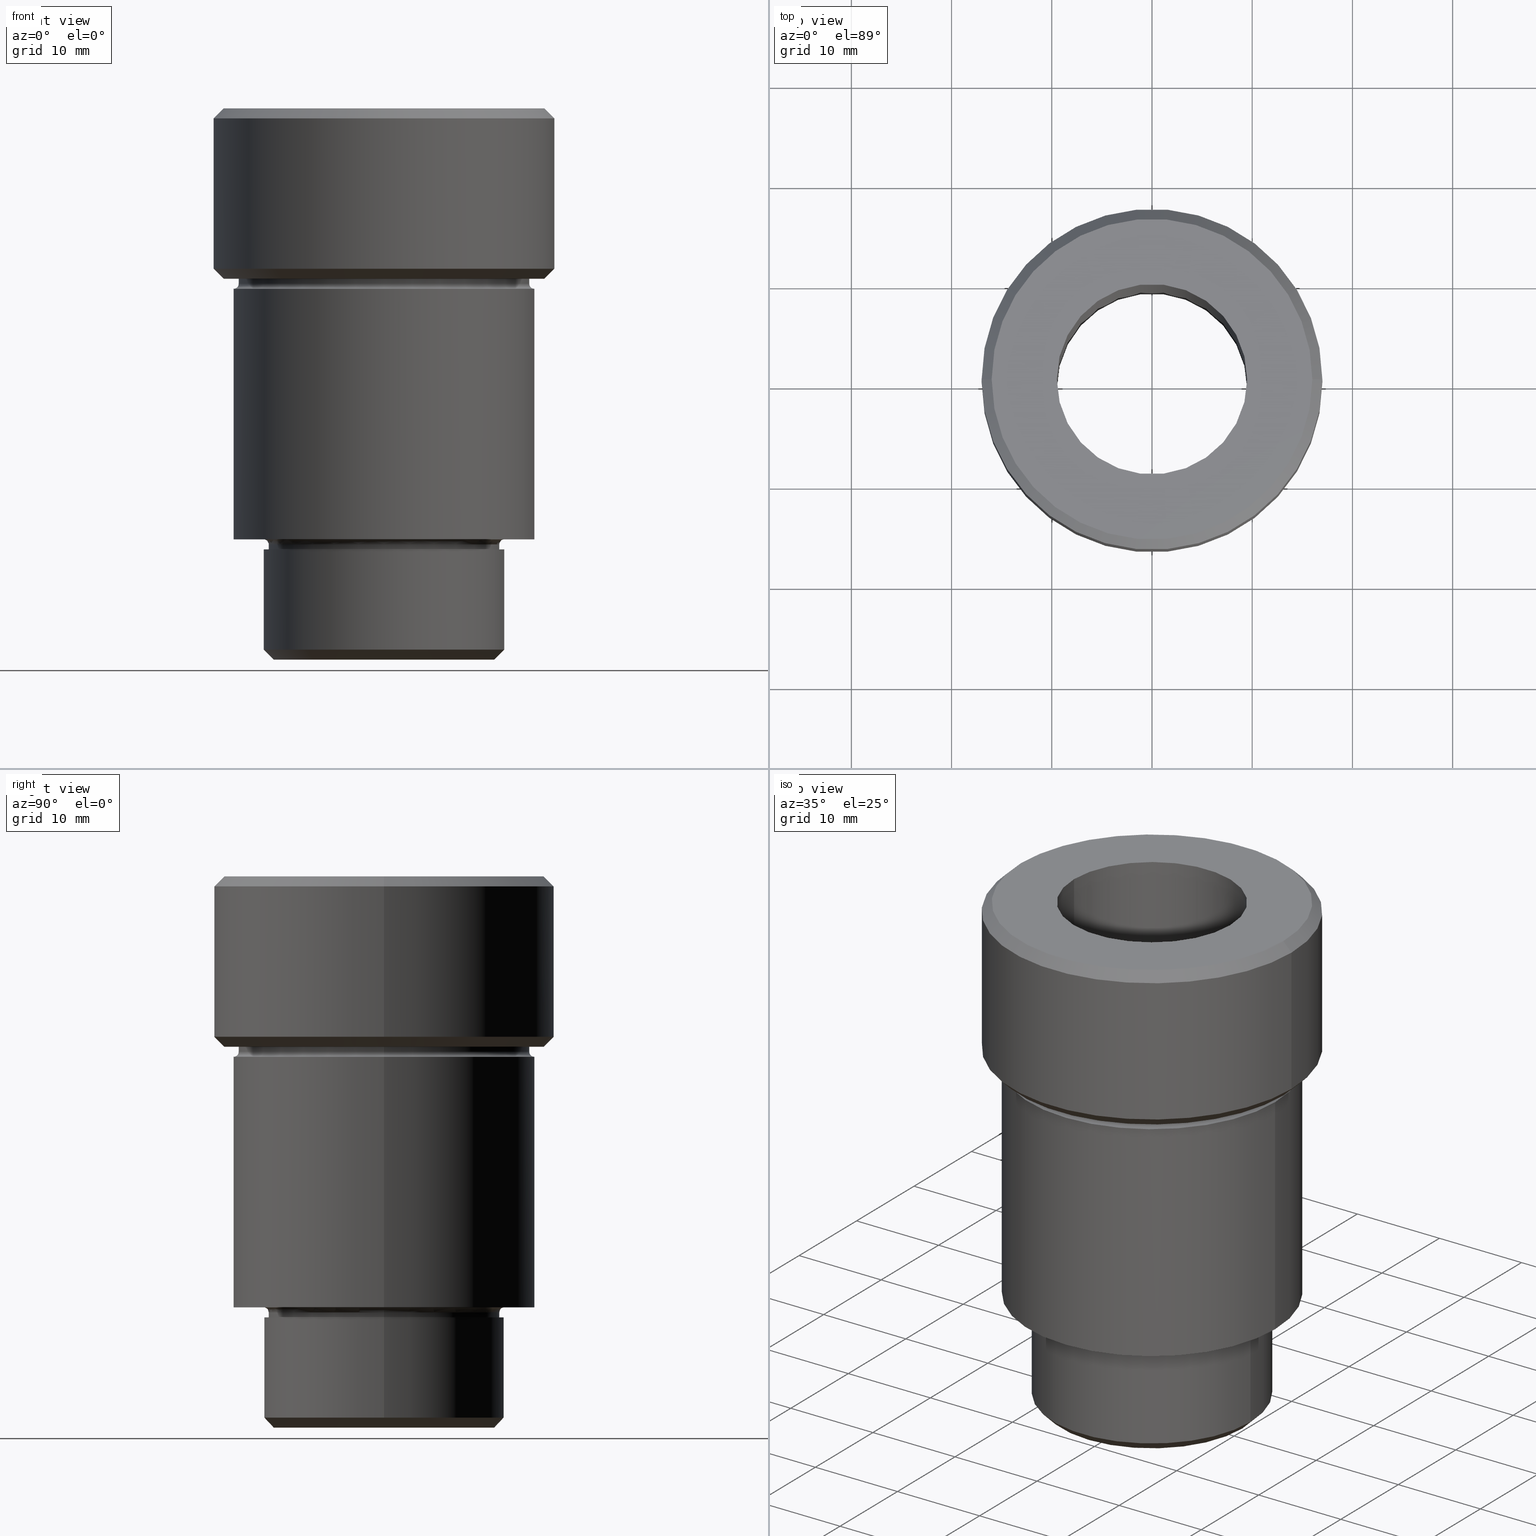
[diagram: canonical four-view strip — front | top / right | iso, engineering-drawing reading convention]
A machine part, canonical four-view strip (front | top / right | iso — engineering-drawing reading convention). The complete STEP part file that produces these views, byte-faithful:
ISO-10303-21;
HEADER;
FILE_DESCRIPTION (( 'STEP AP203' ),
    '1' );
FILE_NAME ('e578.STEP',
    '2024-01-08T12:25:51',
    ( '' ),
    ( '' ),
    'SwSTEP 2.0',
    'SolidWorks 2019',
    '' );
FILE_SCHEMA (( 'CONFIG_CONTROL_DESIGN' ));
ENDSEC;

DATA;
#1 = CARTESIAN_POINT ( 'NONE',  ( -9.500000000000000000, 1.163414459189985485E-15, 0.000000000000000000 ) ) ;
#2 = ORIENTED_EDGE ( 'NONE', *, *, #283, .F. ) ;
#3 = FACE_OUTER_BOUND ( 'NONE', #150, .T. ) ;
#4 = ORIENTED_EDGE ( 'NONE', *, *, #693, .T. ) ;
#5 = ORIENTED_EDGE ( 'NONE', *, *, #262, .T. ) ;
#6 = AXIS2_PLACEMENT_3D ( 'NONE', #34, #514, #87 ) ;
#7 = AXIS2_PLACEMENT_3D ( 'NONE', #315, #76, #418 ) ;
#8 = CARTESIAN_POINT ( 'NONE',  ( -17.00000000000000000, 2.081899558550500280E-15, -16.00000000000001066 ) ) ;
#9 = LINE ( 'NONE', #617, #44 ) ;
#10 = DIRECTION ( 'NONE',  ( -0.000000000000000000, -0.000000000000000000, 1.000000000000000000 ) ) ;
#11 = LINE ( 'NONE', #251, #726 ) ;
#12 = ORIENTED_EDGE ( 'NONE', *, *, #301, .F. ) ;
#13 = CARTESIAN_POINT ( 'NONE',  ( 0.000000000000000000, 0.000000000000000000, -54.99999999999999289 ) ) ;
#14 = CARTESIAN_POINT ( 'NONE',  ( -15.00000000000000178, 1.836970198721029983E-15, 0.000000000000000000 ) ) ;
#15 = VECTOR ( 'NONE', #42, 999.9999999999998863 ) ;
#16 = CARTESIAN_POINT ( 'NONE',  ( 0.000000000000000000, 0.000000000000000000, -54.99999999999999289 ) ) ;
#17 = ORGANIZATION ( 'NEUR�EN�', 'NEUR�EN�', '' ) ;
#18 = EDGE_CURVE ( 'NONE', #225, #73, #270, .T. ) ;
#19 = DIRECTION ( 'NONE',  ( -1.000000000000000000, 0.000000000000000000, 0.000000000000000000 ) ) ;
#20 = APPROVAL_DATE_TIME ( #565, #277 ) ;
#21 = PERSON_AND_ORGANIZATION ( #573, #17 ) ;
#22 = DIRECTION ( 'NONE',  ( -1.000000000000000000, 0.000000000000000000, 0.000000000000000000 ) ) ;
#23 = ORIENTED_EDGE ( 'NONE', *, *, #136, .T. ) ;
#24 =( LENGTH_UNIT ( ) NAMED_UNIT ( * ) SI_UNIT ( .MILLI., .METRE. ) );
#25 = CARTESIAN_POINT ( 'NONE',  ( 12.00000000000000000, 1.469576158976823947E-15, -43.00000000000000000 ) ) ;
#26 = CARTESIAN_POINT ( 'NONE',  ( 12.00000000000000355, 0.000000000000000000, -54.00000000000001421 ) ) ;
#27 = CARTESIAN_POINT ( 'NONE',  ( -12.00000000000000355, 1.469576158976824342E-15, -54.00000000000001421 ) ) ;
#28 = ADVANCED_FACE ( 'NONE', ( #691 ), #524, .F. ) ;
#29 = ORIENTED_EDGE ( 'NONE', *, *, #18, .F. ) ;
#30 = AXIS2_PLACEMENT_3D ( 'NONE', #448, #391, #219 ) ;
#31 = COORDINATED_UNIVERSAL_TIME_OFFSET ( 1, 0, .AHEAD. ) ;
#32 = CARTESIAN_POINT ( 'NONE',  ( 0.000000000000000000, 0.000000000000000000, -43.00000000000000000 ) ) ;
#33 = CIRCLE ( 'NONE', #460, 0.5000000000000004441 ) ;
#34 = CARTESIAN_POINT ( 'NONE',  ( 0.000000000000000000, 0.000000000000000000, -16.00000000000001066 ) ) ;
#35 = CARTESIAN_POINT ( 'NONE',  ( 0.000000000000000000, 0.000000000000000000, -43.50000000000000000 ) ) ;
#36 = EDGE_CURVE ( 'NONE', #575, #111, #443, .T. ) ;
#37 = CARTESIAN_POINT ( 'NONE',  ( 0.000000000000000000, 0.000000000000000000, -43.00000000000000000 ) ) ;
#38 = EDGE_CURVE ( 'NONE', #478, #627, #725, .T. ) ;
#39 = DIRECTION ( 'NONE',  ( 0.000000000000000000, -0.000000000000000000, 1.000000000000000000 ) ) ;
#40 = EDGE_LOOP ( 'NONE', ( #647, #237, #119, #578 ) ) ;
#41 = ORIENTED_EDGE ( 'NONE', *, *, #700, .T. ) ;
#42 = DIRECTION ( 'NONE',  ( 0.7071067811865512365, 0.000000000000000000, 0.7071067811865439090 ) ) ;
#43 = CIRCLE ( 'NONE', #613, 12.00000000000000355 ) ;
#44 = VECTOR ( 'NONE', #551, 1000.000000000000000 ) ;
#45 = CARTESIAN_POINT ( 'NONE',  ( 0.000000000000000000, 0.000000000000000000, -54.00000000000001421 ) ) ;
#46 = CYLINDRICAL_SURFACE ( 'NONE', #767, 12.00000000000000355 ) ;
#47 = DIRECTION ( 'NONE',  ( 0.7071067811865524577, 0.000000000000000000, 0.7071067811865426878 ) ) ;
#48 = EDGE_CURVE ( 'NONE', #637, #86, #670, .T. ) ;
#49 = CC_DESIGN_PERSON_AND_ORGANIZATION_ASSIGNMENT ( #511, #89, ( #102 ) ) ;
#50 = ORIENTED_EDGE ( 'NONE', *, *, #188, .T. ) ;
#51 = EDGE_LOOP ( 'NONE', ( #2, #596, #492, #331 ) ) ;
#52 = FACE_OUTER_BOUND ( 'NONE', #63, .T. ) ;
#53 = EDGE_CURVE ( 'NONE', #358, #111, #242, .T. ) ;
#54 = CARTESIAN_POINT ( 'NONE',  ( 0.000000000000000000, 0.000000000000000000, -17.00000000000000000 ) ) ;
#55 = ORIENTED_EDGE ( 'NONE', *, *, #755, .T. ) ;
#56 = CONICAL_SURFACE ( 'NONE', #228, 12.00000000000000355, 0.7853981633974552734 ) ;
#57 = AXIS2_PLACEMENT_3D ( 'NONE', #13, #130, #304 ) ;
#58 = DIRECTION ( 'NONE',  ( -0.000000000000000000, -0.000000000000000000, 1.000000000000000000 ) ) ;
#59 = CIRCLE ( 'NONE', #83, 0.5000000000000004441 ) ;
#60 = AXIS2_PLACEMENT_3D ( 'NONE', #16, #321, #199 ) ;
#61 = DIRECTION ( 'NONE',  ( -0.000000000000000000, -0.000000000000000000, 1.000000000000000000 ) ) ;
#62 = CYLINDRICAL_SURFACE ( 'NONE', #166, 12.00000000000000355 ) ;
#63 = EDGE_LOOP ( 'NONE', ( #642, #429 ) ) ;
#64 = DIRECTION ( 'NONE',  ( -0.000000000000000000, -0.000000000000000000, 1.000000000000000000 ) ) ;
#65 = FACE_OUTER_BOUND ( 'NONE', #309, .T. ) ;
#66 = DIRECTION ( 'NONE',  ( 0.000000000000000000, 0.000000000000000000, 1.000000000000000000 ) ) ;
#67 = EDGE_LOOP ( 'NONE', ( #176, #96, #41, #683 ) ) ;
#68 = DIRECTION ( 'NONE',  ( -0.000000000000000000, -0.000000000000000000, 1.000000000000000000 ) ) ;
#69 = ORIENTED_EDGE ( 'NONE', *, *, #584, .T. ) ;
#70 = DIRECTION ( 'NONE',  ( -1.000000000000000000, 0.000000000000000000, 0.000000000000000000 ) ) ;
#71 = CIRCLE ( 'NONE', #576, 17.00000000000000000 ) ;
#72 = AXIS2_PLACEMENT_3D ( 'NONE', #753, #314, #206 ) ;
#73 = VERTEX_POINT ( 'NONE', #278 ) ;
#74 = DIRECTION ( 'NONE',  ( 1.000000000000000000, 0.000000000000000000, 0.000000000000000000 ) ) ;
#75 = EDGE_CURVE ( 'NONE', #302, #632, #284, .T. ) ;
#76 = DIRECTION ( 'NONE',  ( -0.000000000000000000, -0.000000000000000000, 1.000000000000000000 ) ) ;
#77 = CALENDAR_DATE ( 2024, 8, 1 ) ;
#78 = EDGE_CURVE ( 'NONE', #496, #732, #600, .T. ) ;
#79 = DIRECTION ( 'NONE',  ( 1.000000000000000000, 0.000000000000000000, 0.000000000000000000 ) ) ;
#80 = ORIENTED_EDGE ( 'NONE', *, *, #349, .F. ) ;
#81 = ORIENTED_EDGE ( 'NONE', *, *, #216, .F. ) ;
#82 = VECTOR ( 'NONE', #658, 1000.000000000000000 ) ;
#83 = AXIS2_PLACEMENT_3D ( 'NONE', #236, #602, #620 ) ;
#84 = ORIENTED_EDGE ( 'NONE', *, *, #173, .F. ) ;
#85 = EDGE_CURVE ( 'NONE', #348, #478, #738, .T. ) ;
#86 = VERTEX_POINT ( 'NONE', #616 ) ;
#87 = DIRECTION ( 'NONE',  ( -1.000000000000000000, 0.000000000000000000, 0.000000000000000000 ) ) ;
#88 = PLANE ( 'NONE',  #400 ) ;
#89 = PERSON_AND_ORGANIZATION_ROLE ( 'creator' ) ;
#90 = ORIENTED_EDGE ( 'NONE', *, *, #124, .F. ) ;
#91 = DATE_AND_TIME ( #403, #615 ) ;
#92 = CARTESIAN_POINT ( 'NONE',  ( 0.000000000000000000, 0.000000000000000000, 0.000000000000000000 ) ) ;
#93 = EDGE_LOOP ( 'NONE', ( #780, #407, #90, #241 ) ) ;
#94 = EDGE_CURVE ( 'NONE', #362, #419, #656, .T. ) ;
#95 = APPROVAL_STATUS ( 'not_yet_approved' ) ;
#96 = ORIENTED_EDGE ( 'NONE', *, *, #48, .F. ) ;
#97 = AXIS2_PLACEMENT_3D ( 'NONE', #541, #791, #235 ) ;
#98 = DIRECTION ( 'NONE',  ( -0.000000000000000000, -0.000000000000000000, 1.000000000000000000 ) ) ;
#99 = AXIS2_PLACEMENT_3D ( 'NONE', #203, #397, #147 ) ;
#100 = ORIENTED_EDGE ( 'NONE', *, *, #297, .T. ) ;
#101 = CARTESIAN_POINT ( 'NONE',  ( 0.000000000000000000, 0.000000000000000000, -17.00000000000000000 ) ) ;
#102 = PRODUCT_DEFINITION ( 'NEZN�M�', '', #168, #750 ) ;
#103 = EDGE_LOOP ( 'NONE', ( #518, #456, #233, #540 ) ) ;
#104 = DIRECTION ( 'NONE',  ( -1.000000000000000000, 0.000000000000000000, 0.000000000000000000 ) ) ;
#105 = EDGE_CURVE ( 'NONE', #178, #253, #11, .T. ) ;
#106 = DIRECTION ( 'NONE',  ( 1.000000000000000000, 0.000000000000000000, 0.000000000000000000 ) ) ;
#107 = AXIS2_PLACEMENT_3D ( 'NONE', #537, #787, #230 ) ;
#108 = AXIS2_PLACEMENT_3D ( 'NONE', #194, #138, #471 ) ;
#109 = EDGE_CURVE ( 'NONE', #393, #575, #317, .T. ) ;
#110 = DIRECTION ( 'NONE',  ( -0.000000000000000000, -0.000000000000000000, 1.000000000000000000 ) ) ;
#111 = VERTEX_POINT ( 'NONE', #8 ) ;
#112 = EDGE_CURVE ( 'NONE', #627, #116, #271, .T. ) ;
#113 = DIRECTION ( 'NONE',  ( -0.000000000000000000, -0.000000000000000000, 1.000000000000000000 ) ) ;
#114 = ORIENTED_EDGE ( 'NONE', *, *, #415, .T. ) ;
#115 = DIRECTION ( 'NONE',  ( 1.000000000000000000, 0.000000000000000000, 0.000000000000000000 ) ) ;
#116 = VERTEX_POINT ( 'NONE', #25 ) ;
#117 = CARTESIAN_POINT ( 'NONE',  ( 0.000000000000000000, 0.000000000000000000, -43.00000000000000000 ) ) ;
#118 = FACE_OUTER_BOUND ( 'NONE', #261, .T. ) ;
#119 = ORIENTED_EDGE ( 'NONE', *, *, #467, .F. ) ;
#120 = VECTOR ( 'NONE', #563, 1000.000000000000000 ) ;
#121 = AXIS2_PLACEMENT_3D ( 'NONE', #422, #123, #273 ) ;
#122 = CYLINDRICAL_SURFACE ( 'NONE', #179, 15.00000000000000178 ) ;
#123 = DIRECTION ( 'NONE',  ( 0.000000000000000000, 0.000000000000000000, -1.000000000000000000 ) ) ;
#124 = EDGE_CURVE ( 'NONE', #505, #116, #696, .T. ) ;
#125 = ORIENTED_EDGE ( 'NONE', *, *, #85, .F. ) ;
#126 = CARTESIAN_POINT ( 'NONE',  ( 15.00000000000000000, 0.000000000000000000, -17.49999999999999645 ) ) ;
#127 = DIRECTION ( 'NONE',  ( 1.000000000000000000, 0.000000000000000000, 0.000000000000000000 ) ) ;
#128 = VERTEX_POINT ( 'NONE', #285 ) ;
#129 = LINE ( 'NONE', #366, #411 ) ;
#130 = DIRECTION ( 'NONE',  ( -0.000000000000000000, -0.000000000000000000, 1.000000000000000000 ) ) ;
#131 = DIRECTION ( 'NONE',  ( 1.000000000000000000, 0.000000000000000000, 0.000000000000000000 ) ) ;
#132 = AXIS2_PLACEMENT_3D ( 'NONE', #246, #368, #131 ) ;
#133 = TOROIDAL_SURFACE ( 'NONE', #758, 15.00000000000000000, 0.5000000000000000000 ) ;
#134 = DIRECTION ( 'NONE',  ( 0.000000000000000000, 0.000000000000000000, -1.000000000000000000 ) ) ;
#135 = ORIENTED_EDGE ( 'NONE', *, *, #612, .F. ) ;
#136 = EDGE_CURVE ( 'NONE', #632, #664, #649, .T. ) ;
#137 = APPROVAL_ROLE ( '' ) ;
#138 = DIRECTION ( 'NONE',  ( -0.000000000000000000, -0.000000000000000000, 1.000000000000000000 ) ) ;
#139 = ORIENTED_EDGE ( 'NONE', *, *, #94, .T. ) ;
#140 = ORIENTED_EDGE ( 'NONE', *, *, #38, .T. ) ;
#141 = DIRECTION ( 'NONE',  ( 1.000000000000000000, 0.000000000000000000, 0.000000000000000000 ) ) ;
#142 = LINE ( 'NONE', #260, #120 ) ;
#143 = VERTEX_POINT ( 'NONE', #770 ) ;
#144 = CONICAL_SURFACE ( 'NONE', #589, 12.00000000000000355, 0.7853981633974552734 ) ;
#145 = VECTOR ( 'NONE', #98, 1000.000000000000000 ) ;
#146 = ORIENTED_EDGE ( 'NONE', *, *, #78, .F. ) ;
#147 = DIRECTION ( 'NONE',  ( -1.000000000000000000, 0.000000000000000000, 0.000000000000000000 ) ) ;
#148 = CARTESIAN_POINT ( 'NONE',  ( 0.000000000000000000, 0.000000000000000000, -54.99999999999999289 ) ) ;
#149 = CARTESIAN_POINT ( 'NONE',  ( 0.000000000000000000, 0.000000000000000000, -43.50000000000000000 ) ) ;
#150 = EDGE_LOOP ( 'NONE', ( #708, #437, #365, #547 ) ) ;
#151 = ORIENTED_EDGE ( 'NONE', *, *, #493, .F. ) ;
#152 = DIRECTION ( 'NONE',  ( -0.000000000000000000, -0.000000000000000000, 1.000000000000000000 ) ) ;
#153 = SHAPE_DEFINITION_REPRESENTATION ( #703, #534 ) ;
#154 = CARTESIAN_POINT ( 'NONE',  ( 0.000000000000000000, 0.000000000000000000, 0.000000000000000000 ) ) ;
#155 = ORIENTED_EDGE ( 'NONE', *, *, #75, .F. ) ;
#156 = AXIS2_PLACEMENT_3D ( 'NONE', #779, #529, #226 ) ;
#157 = DIRECTION ( 'NONE',  ( 1.000000000000000000, 0.000000000000000000, 0.000000000000000000 ) ) ;
#158 = AXIS2_PLACEMENT_3D ( 'NONE', #154, #376, #19 ) ;
#159 = PERSON_AND_ORGANIZATION_ROLE ( 'classification_officer' ) ;
#160 = APPROVAL_PERSON_ORGANIZATION ( #265, #497, #210 ) ;
#161 = EDGE_CURVE ( 'NONE', #575, #393, #383, .T. ) ;
#162 = CARTESIAN_POINT ( 'NONE',  ( -12.00000000000000355, 1.469576158976824342E-15, -54.00000000000001421 ) ) ;
#163 = DIRECTION ( 'NONE',  ( 0.000000000000000000, 0.000000000000000000, -1.000000000000000000 ) ) ;
#164 = CARTESIAN_POINT ( 'NONE',  ( 17.00000000000000000, 0.000000000000000000, -16.00000000000001066 ) ) ;
#165 = EDGE_CURVE ( 'NONE', #348, #282, #756, .T. ) ;
#166 = AXIS2_PLACEMENT_3D ( 'NONE', #245, #185, #356 ) ;
#167 = ORIENTED_EDGE ( 'NONE', *, *, #36, .F. ) ;
#168 = PRODUCT_DEFINITION_FORMATION_WITH_SPECIFIED_SOURCE ( 'LIBOVOLN�', '', #263, .NOT_KNOWN. ) ;
#169 = EDGE_LOOP ( 'NONE', ( #741, #702, #324, #535 ) ) ;
#170 = CARTESIAN_POINT ( 'NONE',  ( 0.000000000000000000, 0.000000000000000000, -44.00000000000000000 ) ) ;
#171 = ORIENTED_EDGE ( 'NONE', *, *, #38, .F. ) ;
#172 = CYLINDRICAL_SURFACE ( 'NONE', #743, 17.00000000000000000 ) ;
#173 = EDGE_CURVE ( 'NONE', #143, #732, #463, .T. ) ;
#174 = CYLINDRICAL_SURFACE ( 'NONE', #709, 14.49999999999999822 ) ;
#175 = DIRECTION ( 'NONE',  ( 1.000000000000000000, 0.000000000000000000, 0.000000000000000000 ) ) ;
#176 = ORIENTED_EDGE ( 'NONE', *, *, #389, .F. ) ;
#177 = CARTESIAN_POINT ( 'NONE',  ( 0.000000000000000000, 0.000000000000000000, 0.000000000000000000 ) ) ;
#178 = VERTEX_POINT ( 'NONE', #162 ) ;
#179 = AXIS2_PLACEMENT_3D ( 'NONE', #728, #61, #240 ) ;
#180 = CIRCLE ( 'NONE', #286, 9.500000000000000000 ) ;
#181 = CARTESIAN_POINT ( 'NONE',  ( 0.000000000000000000, 0.000000000000000000, 0.000000000000000000 ) ) ;
#182 = DIRECTION ( 'NONE',  ( -0.000000000000000000, -0.000000000000000000, 1.000000000000000000 ) ) ;
#183 = ORIENTED_EDGE ( 'NONE', *, *, #212, .T. ) ;
#184 = DIRECTION ( 'NONE',  ( -1.000000000000000000, 0.000000000000000000, 0.000000000000000000 ) ) ;
#185 = DIRECTION ( 'NONE',  ( -0.000000000000000000, -0.000000000000000000, 1.000000000000000000 ) ) ;
#186 = CARTESIAN_POINT ( 'NONE',  ( 0.000000000000000000, 0.000000000000000000, -54.99999999999999289 ) ) ;
#187 = CARTESIAN_POINT ( 'NONE',  ( 12.00000000000000000, 1.469576158976823947E-15, -43.50000000000000000 ) ) ;
#188 = EDGE_CURVE ( 'NONE', #393, #358, #711, .T. ) ;
#189 = LINE ( 'NONE', #424, #698 ) ;
#190 = EDGE_CURVE ( 'NONE', #268, #128, #71, .T. ) ;
#191 = CARTESIAN_POINT ( 'NONE',  ( 0.000000000000000000, 0.000000000000000000, -43.50000000000000000 ) ) ;
#192 = CIRCLE ( 'NONE', #562, 15.99999999999999289 ) ;
#193 = APPROVAL_STATUS ( 'not_yet_approved' ) ;
#194 = CARTESIAN_POINT ( 'NONE',  ( 0.000000000000000000, 0.000000000000000000, -16.00000000000001066 ) ) ;
#195 = FACE_OUTER_BOUND ( 'NONE', #488, .T. ) ;
#196 = CARTESIAN_POINT ( 'NONE',  ( 0.000000000000000000, 0.000000000000000000, -17.49999999999999645 ) ) ;
#197 = CARTESIAN_POINT ( 'NONE',  ( 0.000000000000000000, 0.000000000000000000, 0.000000000000000000 ) ) ;
#198 = ADVANCED_FACE ( 'NONE', ( #462 ), #174, .T. ) ;
#199 = DIRECTION ( 'NONE',  ( 1.000000000000000000, 0.000000000000000000, 0.000000000000000000 ) ) ;
#200 = CARTESIAN_POINT ( 'NONE',  ( 0.000000000000000000, 0.000000000000000000, 0.000000000000000000 ) ) ;
#201 = CALENDAR_DATE ( 2024, 8, 1 ) ;
#202 = PRODUCT_RELATED_PRODUCT_CATEGORY ( 'detail', '', ( #263 ) ) ;
#203 = CARTESIAN_POINT ( 'NONE',  ( 0.000000000000000000, 0.000000000000000000, -43.50000000000000000 ) ) ;
#204 = CIRCLE ( 'NONE', #643, 12.00000000000000355 ) ;
#205 = CIRCLE ( 'NONE', #710, 14.49999999999999822 ) ;
#206 = DIRECTION ( 'NONE',  ( 1.000000000000000000, 0.000000000000000000, 0.000000000000000000 ) ) ;
#207 = DIRECTION ( 'NONE',  ( -1.000000000000000000, 0.000000000000000000, 0.000000000000000000 ) ) ;
#208 = DIRECTION ( 'NONE',  ( -0.7071067811865524577, 8.659560562354993255E-17, 0.7071067811865426878 ) ) ;
#209 = EDGE_LOOP ( 'NONE', ( #586, #608 ) ) ;
#210 = APPROVAL_ROLE ( '' ) ;
#211 = DIRECTION ( 'NONE',  ( -0.000000000000000000, -0.000000000000000000, 1.000000000000000000 ) ) ;
#212 = EDGE_CURVE ( 'NONE', #111, #128, #350, .T. ) ;
#213 = ORIENTED_EDGE ( 'NONE', *, *, #85, .T. ) ;
#214 = COORDINATED_UNIVERSAL_TIME_OFFSET ( 1, 0, .AHEAD. ) ;
#215 = DIRECTION ( 'NONE',  ( 0.000000000000000000, 0.000000000000000000, -1.000000000000000000 ) ) ;
#216 = EDGE_CURVE ( 'NONE', #178, #664, #43, .T. ) ;
#217 = VERTEX_POINT ( 'NONE', #598 ) ;
#218 = AXIS2_PLACEMENT_3D ( 'NONE', #408, #593, #595 ) ;
#219 = DIRECTION ( 'NONE',  ( -1.000000000000000000, 0.000000000000000000, 0.000000000000000000 ) ) ;
#220 = AXIS2_PLACEMENT_3D ( 'NONE', #238, #724, #316 ) ;
#221 = CARTESIAN_POINT ( 'NONE',  ( 0.000000000000000000, 0.000000000000000000, -44.00000000000000000 ) ) ;
#222 = CARTESIAN_POINT ( 'NONE',  ( 0.000000000000000000, 0.000000000000000000, -1.000000000000011324 ) ) ;
#223 = EDGE_LOOP ( 'NONE', ( #442, #476 ) ) ;
#224 = DIRECTION ( 'NONE',  ( -1.000000000000000000, 0.000000000000000000, 0.000000000000000000 ) ) ;
#225 = VERTEX_POINT ( 'NONE', #416 ) ;
#226 = DIRECTION ( 'NONE',  ( 1.000000000000000000, 0.000000000000000000, 0.000000000000000000 ) ) ;
#227 = AXIS2_PLACEMENT_3D ( 'NONE', #200, #430, #457 ) ;
#228 = AXIS2_PLACEMENT_3D ( 'NONE', #548, #439, #74 ) ;
#229 = ORIENTED_EDGE ( 'NONE', *, *, #659, .F. ) ;
#230 = DIRECTION ( 'NONE',  ( -1.000000000000000000, 0.000000000000000000, -0.000000000000000000 ) ) ;
#231 = CARTESIAN_POINT ( 'NONE',  ( 9.500000000000000000, 0.000000000000000000, 0.000000000000000000 ) ) ;
#232 = VERTEX_POINT ( 'NONE', #342 ) ;
#233 = ORIENTED_EDGE ( 'NONE', *, *, #53, .F. ) ;
#234 = ADVANCED_FACE ( 'NONE', ( #340 ), #46, .T. ) ;
#235 = DIRECTION ( 'NONE',  ( 1.000000000000000000, 0.000000000000000000, 0.000000000000000000 ) ) ;
#236 = CARTESIAN_POINT ( 'NONE',  ( -12.00000000000000000, 0.000000000000000000, -43.50000000000000000 ) ) ;
#237 = ORIENTED_EDGE ( 'NONE', *, *, #389, .T. ) ;
#238 = CARTESIAN_POINT ( 'NONE',  ( 0.000000000000000000, 12.00000000000000355, -54.99999999999999289 ) ) ;
#239 = ADVANCED_FACE ( 'NONE', ( #469 ), #783, .T. ) ;
#240 = DIRECTION ( 'NONE',  ( 1.000000000000000000, 0.000000000000000000, 0.000000000000000000 ) ) ;
#241 = ORIENTED_EDGE ( 'NONE', *, *, #591, .F. ) ;
#242 = CIRCLE ( 'NONE', #6, 17.00000000000000000 ) ;
#243 = CIRCLE ( 'NONE', #549, 12.00000000000000000 ) ;
#244 = PLANE ( 'NONE',  #220 ) ;
#245 = CARTESIAN_POINT ( 'NONE',  ( 0.000000000000000000, 0.000000000000000000, 0.000000000000000000 ) ) ;
#246 = CARTESIAN_POINT ( 'NONE',  ( 0.000000000000000000, 0.000000000000000000, 0.000000000000000000 ) ) ;
#247 = FACE_OUTER_BOUND ( 'NONE', #789, .T. ) ;
#248 = CARTESIAN_POINT ( 'NONE',  ( 12.00000000000000178, 0.000000000000000000, -44.00000000000000000 ) ) ;
#249 = CC_DESIGN_PERSON_AND_ORGANIZATION_ASSIGNMENT ( #622, #254, ( #263 ) ) ;
#250 = CARTESIAN_POINT ( 'NONE',  ( 0.000000000000000000, 0.000000000000000000, 0.000000000000000000 ) ) ;
#251 = CARTESIAN_POINT ( 'NONE',  ( -12.00000000000000355, 1.469576158976824342E-15, 0.000000000000000000 ) ) ;
#252 = FACE_BOUND ( 'NONE', #336, .T. ) ;
#253 = VERTEX_POINT ( 'NONE', #774 ) ;
#254 = PERSON_AND_ORGANIZATION_ROLE ( 'design_owner' ) ;
#255 = DIRECTION ( 'NONE',  ( 0.000000000000000000, 0.000000000000000000, -1.000000000000000000 ) ) ;
#256 = AXIS2_PLACEMENT_3D ( 'NONE', #149, #735, #581 ) ;
#257 = ORIENTED_EDGE ( 'NONE', *, *, #493, .T. ) ;
#258 = AXIS2_PLACEMENT_3D ( 'NONE', #191, #134, #184 ) ;
#259 =( NAMED_UNIT ( * ) SI_UNIT ( $, .STERADIAN. ) SOLID_ANGLE_UNIT ( ) );
#260 = CARTESIAN_POINT ( 'NONE',  ( 15.00000000000000178, 0.000000000000000000, 0.000000000000000000 ) ) ;
#261 = EDGE_LOOP ( 'NONE', ( #351, #213, #140, #151 ) ) ;
#262 = EDGE_CURVE ( 'NONE', #253, #769, #561, .T. ) ;
#263 = PRODUCT ( 'e578', 'e578', '', ( #619 ) ) ;
#264 = APPROVAL_DATE_TIME ( #560, #485 ) ;
#265 = PERSON_AND_ORGANIZATION ( #573, #17 ) ;
#266 = CARTESIAN_POINT ( 'NONE',  ( -15.00000000000000000, 1.836970198721029589E-15, -17.49999999999999645 ) ) ;
#267 = FACE_OUTER_BOUND ( 'NONE', #51, .T. ) ;
#268 = VERTEX_POINT ( 'NONE', #706 ) ;
#269 = CARTESIAN_POINT ( 'NONE',  ( 0.000000000000000000, 0.000000000000000000, -16.00000000000001066 ) ) ;
#270 = CIRCLE ( 'NONE', #781, 14.49999999999999822 ) ;
#271 = CIRCLE ( 'NONE', #742, 0.5000000000000004441 ) ;
#272 = CONICAL_SURFACE ( 'NONE', #435, 17.00000000000000000, 0.7853981633974536081 ) ;
#273 = DIRECTION ( 'NONE',  ( -1.000000000000000000, 0.000000000000000000, 0.000000000000000000 ) ) ;
#274 = ORIENTED_EDGE ( 'NONE', *, *, #165, .T. ) ;
#275 = AXIS2_PLACEMENT_3D ( 'NONE', #148, #570, #508 ) ;
#276 = ADVANCED_FACE ( 'NONE', ( #52, #292 ), #587, .T. ) ;
#277 = APPROVAL ( #95, 'NEUR�EN�' ) ;
#278 = CARTESIAN_POINT ( 'NONE',  ( 14.49999999999999822, 0.000000000000000000, -17.49999999999999645 ) ) ;
#279 = ADVANCED_FACE ( 'NONE', ( #477, #715 ), #339, .T. ) ;
#280 = DIRECTION ( 'NONE',  ( 1.000000000000000000, 0.000000000000000000, 0.000000000000000000 ) ) ;
#281 = EDGE_LOOP ( 'NONE', ( #459, #5 ) ) ;
#282 = VERTEX_POINT ( 'NONE', #545 ) ;
#283 = EDGE_CURVE ( 'NONE', #746, #496, #428, .T. ) ;
#284 = CIRCLE ( 'NONE', #293, 11.00000000000001066 ) ;
#285 = CARTESIAN_POINT ( 'NONE',  ( -17.00000000000000000, 2.081899558550500280E-15, -1.000000000000011324 ) ) ;
#286 = AXIS2_PLACEMENT_3D ( 'NONE', #181, #427, #482 ) ;
#287 = DIRECTION ( 'NONE',  ( -0.000000000000000000, -0.000000000000000000, 1.000000000000000000 ) ) ;
#288 = DIRECTION ( 'NONE',  ( 1.000000000000000000, 0.000000000000000000, 0.000000000000000000 ) ) ;
#289 = CARTESIAN_POINT ( 'NONE',  ( 0.000000000000000000, 0.000000000000000000, 0.000000000000000000 ) ) ;
#290 = ORIENTED_EDGE ( 'NONE', *, *, #109, .F. ) ;
#291 = DIRECTION ( 'NONE',  ( 0.000000000000000000, -0.000000000000000000, 1.000000000000000000 ) ) ;
#292 = FACE_BOUND ( 'NONE', #223, .T. ) ;
#293 = AXIS2_PLACEMENT_3D ( 'NONE', #521, #215, #494 ) ;
#294 = ADVANCED_FACE ( 'NONE', ( #3 ), #122, .T. ) ;
#295 = AXIS2_PLACEMENT_3D ( 'NONE', #186, #66, #175 ) ;
#296 = ORIENTED_EDGE ( 'NONE', *, *, #707, .F. ) ;
#297 = EDGE_CURVE ( 'NONE', #305, #322, #369, .T. ) ;
#298 = CC_DESIGN_APPROVAL ( #497, ( #759 ) ) ;
#299 = CARTESIAN_POINT ( 'NONE',  ( -15.00000000000000533, 1.836970198721030378E-15, -43.00000000000000000 ) ) ;
#300 = DIRECTION ( 'NONE',  ( 1.000000000000000000, 0.000000000000000000, 0.000000000000000000 ) ) ;
#301 = EDGE_CURVE ( 'NONE', #419, #362, #484, .T. ) ;
#302 = VERTEX_POINT ( 'NONE', #353 ) ;
#303 = DIRECTION ( 'NONE',  ( 1.000000000000000000, 0.000000000000000000, 0.000000000000000000 ) ) ;
#304 = DIRECTION ( 'NONE',  ( 1.000000000000000000, 0.000000000000000000, 0.000000000000000000 ) ) ;
#305 = VERTEX_POINT ( 'NONE', #299 ) ;
#306 = DIRECTION ( 'NONE',  ( 0.000000000000000000, -1.000000000000000000, 0.000000000000000000 ) ) ;
#307 = ORIENTED_EDGE ( 'NONE', *, *, #190, .T. ) ;
#308 = EDGE_CURVE ( 'NONE', #217, #232, #434, .T. ) ;
#309 = EDGE_LOOP ( 'NONE', ( #626, #793, #23, #81 ) ) ;
#310 = AXIS2_PLACEMENT_3D ( 'NONE', #667, #571, #157 ) ;
#311 = CIRCLE ( 'NONE', #401, 17.00000000000000000 ) ;
#312 = LOCAL_TIME ( 13, 25, 51.00000000000000000, #214 ) ;
#313 = ADVANCED_FACE ( 'NONE', ( #479 ), #720, .T. ) ;
#314 = DIRECTION ( 'NONE',  ( 0.000000000000000000, 0.000000000000000000, 1.000000000000000000 ) ) ;
#315 = CARTESIAN_POINT ( 'NONE',  ( 0.000000000000000000, 0.000000000000000000, 0.000000000000000000 ) ) ;
#316 = DIRECTION ( 'NONE',  ( -1.000000000000000000, 0.000000000000000000, -0.000000000000000000 ) ) ;
#317 = CIRCLE ( 'NONE', #458, 16.00000000000000000 ) ;
#318 = COORDINATED_UNIVERSAL_TIME_OFFSET ( 1, 0, .AHEAD. ) ;
#319 = FACE_OUTER_BOUND ( 'NONE', #103, .T. ) ;
#320 = EDGE_LOOP ( 'NONE', ( #599, #379, #717, #455 ) ) ;
#321 = DIRECTION ( 'NONE',  ( -0.000000000000000000, -0.000000000000000000, 1.000000000000000000 ) ) ;
#322 = VERTEX_POINT ( 'NONE', #606 ) ;
#323 = DIRECTION ( 'NONE',  ( -1.000000000000000000, 0.000000000000000000, -0.000000000000000000 ) ) ;
#324 = ORIENTED_EDGE ( 'NONE', *, *, #566, .T. ) ;
#325 = ADVANCED_FACE ( 'NONE', ( #65 ), #144, .T. ) ;
#326 = CALENDAR_DATE ( 2024, 8, 1 ) ;
#327 = EDGE_LOOP ( 'NONE', ( #125, #274, #257, #4 ) ) ;
#328 = DATE_TIME_ROLE ( 'classification_date' ) ;
#329 = LINE ( 'NONE', #520, #145 ) ;
#330 = DIRECTION ( 'NONE',  ( -0.000000000000000000, -0.000000000000000000, 1.000000000000000000 ) ) ;
#331 = ORIENTED_EDGE ( 'NONE', *, *, #390, .T. ) ;
#332 = CLOSED_SHELL ( 'NONE', ( #625, #473, #552, #749, #533, #375, #713, #652, #294, #762, #354, #406, #279, #635, #276, #198, #585, #668, #313, #335, #234, #325, #239, #557, #449, #28, #788 ) ) ;
#333 = ORIENTED_EDGE ( 'NONE', *, *, #283, .T. ) ;
#334 = AXIS2_PLACEMENT_3D ( 'NONE', #364, #610, #601 ) ;
#335 = ADVANCED_FACE ( 'NONE', ( #773, #648 ), #464, .T. ) ;
#336 = EDGE_LOOP ( 'NONE', ( #775, #778 ) ) ;
#337 = LINE ( 'NONE', #582, #590 ) ;
#338 = EDGE_LOOP ( 'NONE', ( #432, #100, #344, #12 ) ) ;
#339 = PLANE ( 'NONE',  #421 ) ;
#340 = FACE_OUTER_BOUND ( 'NONE', #169, .T. ) ;
#341 = AXIS2_PLACEMENT_3D ( 'NONE', #177, #420, #360 ) ;
#342 = CARTESIAN_POINT ( 'NONE',  ( -14.49999999999999822, 1.775737858763662015E-15, -17.00000000000000000 ) ) ;
#343 = CIRCLE ( 'NONE', #108, 17.00000000000000000 ) ;
#344 = ORIENTED_EDGE ( 'NONE', *, *, #528, .T. ) ;
#345 = EDGE_LOOP ( 'NONE', ( #167, #290, #50, #296 ) ) ;
#346 = DIRECTION ( 'NONE',  ( -0.000000000000000000, -0.000000000000000000, 1.000000000000000000 ) ) ;
#347 = DIRECTION ( 'NONE',  ( -0.000000000000000000, -0.000000000000000000, 1.000000000000000000 ) ) ;
#348 = VERTEX_POINT ( 'NONE', #530 ) ;
#349 = EDGE_CURVE ( 'NONE', #664, #178, #204, .T. ) ;
#350 = LINE ( 'NONE', #465, #499 ) ;
#351 = ORIENTED_EDGE ( 'NONE', *, *, #440, .T. ) ;
#352 = EDGE_LOOP ( 'NONE', ( #155, #640, #80, #730 ) ) ;
#353 = CARTESIAN_POINT ( 'NONE',  ( -11.00000000000001066, 1.408343819019456965E-15, -54.99999999999999289 ) ) ;
#354 = ADVANCED_FACE ( 'NONE', ( #714 ), #172, .T. ) ;
#355 = AXIS2_PLACEMENT_3D ( 'NONE', #221, #410, #646 ) ;
#356 = DIRECTION ( 'NONE',  ( 1.000000000000000000, 0.000000000000000000, 0.000000000000000000 ) ) ;
#357 = VECTOR ( 'NONE', #208, 1000.000000000000000 ) ;
#358 = VERTEX_POINT ( 'NONE', #164 ) ;
#359 = FACE_OUTER_BOUND ( 'NONE', #352, .T. ) ;
#360 = DIRECTION ( 'NONE',  ( 1.000000000000000000, 0.000000000000000000, 0.000000000000000000 ) ) ;
#361 = CARTESIAN_POINT ( 'NONE',  ( 0.000000000000000000, 0.000000000000000000, -44.00000000000000000 ) ) ;
#362 = VERTEX_POINT ( 'NONE', #790 ) ;
#363 = CARTESIAN_POINT ( 'NONE',  ( -15.00000000000000000, 1.836970198721029983E-15, -18.00000000000000000 ) ) ;
#364 = CARTESIAN_POINT ( 'NONE',  ( 0.000000000000000000, 0.000000000000000000, -18.00000000000000000 ) ) ;
#365 = ORIENTED_EDGE ( 'NONE', *, *, #94, .F. ) ;
#366 = CARTESIAN_POINT ( 'NONE',  ( 11.50000000000000000, 0.000000000000000000, 0.000000000000000000 ) ) ;
#367 = CARTESIAN_POINT ( 'NONE',  ( 11.00000000000001066, 0.000000000000000000, -54.99999999999999289 ) ) ;
#368 = DIRECTION ( 'NONE',  ( -0.000000000000000000, -0.000000000000000000, 1.000000000000000000 ) ) ;
#369 = CIRCLE ( 'NONE', #468, 15.00000000000000355 ) ;
#370 = AXIS2_PLACEMENT_3D ( 'NONE', #663, #674, #373 ) ;
#371 = CC_DESIGN_APPROVAL ( #485, ( #102 ) ) ;
#372 = CYLINDRICAL_SURFACE ( 'NONE', #7, 17.00000000000000000 ) ;
#373 = DIRECTION ( 'NONE',  ( 1.000000000000000000, 0.000000000000000000, 0.000000000000000000 ) ) ;
#374 = DIRECTION ( 'NONE',  ( -0.000000000000000000, -0.000000000000000000, 1.000000000000000000 ) ) ;
#375 = ADVANCED_FACE ( 'NONE', ( #359 ), #56, .T. ) ;
#376 = DIRECTION ( 'NONE',  ( 0.000000000000000000, 0.000000000000000000, -1.000000000000000000 ) ) ;
#377 = ORIENTED_EDGE ( 'NONE', *, *, #755, .F. ) ;
#378 = CALENDAR_DATE ( 2024, 8, 1 ) ;
#379 = ORIENTED_EDGE ( 'NONE', *, *, #18, .T. ) ;
#380 =( NAMED_UNIT ( * ) PLANE_ANGLE_UNIT ( ) SI_UNIT ( $, .RADIAN. ) );
#381 = EDGE_CURVE ( 'NONE', #358, #268, #559, .T. ) ;
#382 = DIRECTION ( 'NONE',  ( -0.000000000000000000, -0.000000000000000000, 1.000000000000000000 ) ) ;
#383 = CIRCLE ( 'NONE', #218, 16.00000000000000000 ) ;
#384 = ORIENTED_EDGE ( 'NONE', *, *, #566, .F. ) ;
#385 = CIRCLE ( 'NONE', #295, 9.500000000000000000 ) ;
#386 = CONICAL_SURFACE ( 'NONE', #121, 15.99999999999999289, 0.7853981633974466137 ) ;
#387 = DIRECTION ( 'NONE',  ( -1.000000000000000000, -1.224646799147353454E-16, 0.000000000000000000 ) ) ;
#388 = FACE_OUTER_BOUND ( 'NONE', #93, .T. ) ;
#389 = EDGE_CURVE ( 'NONE', #86, #268, #9, .T. ) ;
#390 = EDGE_CURVE ( 'NONE', #732, #496, #180, .T. ) ;
#391 = DIRECTION ( 'NONE',  ( -0.000000000000000000, -0.000000000000000000, 1.000000000000000000 ) ) ;
#392 = EDGE_CURVE ( 'NONE', #73, #362, #33, .T. ) ;
#393 = VERTEX_POINT ( 'NONE', #436 ) ;
#394 = DATE_TIME_ROLE ( 'creation_date' ) ;
#395 = DIRECTION ( 'NONE',  ( -0.7071067811865512365, 8.659560562354979697E-17, 0.7071067811865439090 ) ) ;
#396 = CARTESIAN_POINT ( 'NONE',  ( 0.000000000000000000, 15.00000000000000355, -43.00000000000000000 ) ) ;
#397 = DIRECTION ( 'NONE',  ( 0.000000000000000000, 0.000000000000000000, -1.000000000000000000 ) ) ;
#398 = VECTOR ( 'NONE', #669, 1000.000000000000000 ) ;
#399 = ORIENTED_EDGE ( 'NONE', *, *, #212, .F. ) ;
#400 = AXIS2_PLACEMENT_3D ( 'NONE', #396, #757, #323 ) ;
#401 = AXIS2_PLACEMENT_3D ( 'NONE', #731, #255, #504 ) ;
#402 = CARTESIAN_POINT ( 'NONE',  ( -17.00000000000000000, 2.081899558550500280E-15, -16.00000000000001066 ) ) ;
#403 = CALENDAR_DATE ( 2024, 8, 1 ) ;
#404 = EDGE_LOOP ( 'NONE', ( #569, #171, #712, #229 ) ) ;
#405 = CARTESIAN_POINT ( 'NONE',  ( 17.00000000000000000, 0.000000000000000000, -16.00000000000001066 ) ) ;
#406 = ADVANCED_FACE ( 'NONE', ( #252, #247 ), #244, .T. ) ;
#407 = ORIENTED_EDGE ( 'NONE', *, *, #112, .T. ) ;
#408 = CARTESIAN_POINT ( 'NONE',  ( 0.000000000000000000, 0.000000000000000000, -17.00000000000000000 ) ) ;
#409 = VECTOR ( 'NONE', #766, 1000.000000000000000 ) ;
#410 = DIRECTION ( 'NONE',  ( -0.000000000000000000, -0.000000000000000000, 1.000000000000000000 ) ) ;
#411 = VECTOR ( 'NONE', #544, 1000.000000000000000 ) ;
#412 = ORIENTED_EDGE ( 'NONE', *, *, #392, .F. ) ;
#413 = DIRECTION ( 'NONE',  ( 1.000000000000000000, 0.000000000000000000, 0.000000000000000000 ) ) ;
#414 = EDGE_LOOP ( 'NONE', ( #481, #588, #466, #384 ) ) ;
#415 = EDGE_CURVE ( 'NONE', #632, #302, #644, .T. ) ;
#416 = CARTESIAN_POINT ( 'NONE',  ( -14.49999999999999822, 1.775737858763662015E-15, -17.49999999999999645 ) ) ;
#417 = APPLICATION_CONTEXT ( 'configuration controlled 3d designs of mechanical parts and assemblies' ) ;
#418 = DIRECTION ( 'NONE',  ( 1.000000000000000000, 0.000000000000000000, 0.000000000000000000 ) ) ;
#419 = VERTEX_POINT ( 'NONE', #363 ) ;
#420 = DIRECTION ( 'NONE',  ( -0.000000000000000000, -0.000000000000000000, 1.000000000000000000 ) ) ;
#421 = AXIS2_PLACEMENT_3D ( 'NONE', #583, #39, #280 ) ;
#422 = CARTESIAN_POINT ( 'NONE',  ( 0.000000000000000000, 0.000000000000000000, 0.000000000000000000 ) ) ;
#423 = AXIS2_PLACEMENT_3D ( 'NONE', #37, #211, #687 ) ;
#424 = CARTESIAN_POINT ( 'NONE',  ( -14.49999999999999822, 1.775737858763662015E-15, 0.000000000000000000 ) ) ;
#425 = CIRCLE ( 'NONE', #275, 9.500000000000000000 ) ;
#426 = ORIENTED_EDGE ( 'NONE', *, *, #467, .T. ) ;
#427 = DIRECTION ( 'NONE',  ( -0.000000000000000000, -0.000000000000000000, 1.000000000000000000 ) ) ;
#428 = LINE ( 'NONE', #483, #82 ) ;
#429 = ORIENTED_EDGE ( 'NONE', *, *, #161, .T. ) ;
#430 = DIRECTION ( 'NONE',  ( -0.000000000000000000, -0.000000000000000000, 1.000000000000000000 ) ) ;
#431 = CARTESIAN_POINT ( 'NONE',  ( 17.00000000000000000, 0.000000000000000000, 0.000000000000000000 ) ) ;
#432 = ORIENTED_EDGE ( 'NONE', *, *, #444, .F. ) ;
#433 = DIRECTION ( 'NONE',  ( 1.000000000000000000, 0.000000000000000000, 0.000000000000000000 ) ) ;
#434 = CIRCLE ( 'NONE', #97, 14.49999999999999822 ) ;
#435 = AXIS2_PLACEMENT_3D ( 'NONE', #269, #330, #79 ) ;
#436 = CARTESIAN_POINT ( 'NONE',  ( 16.00000000000000000, 0.000000000000000000, -17.00000000000000000 ) ) ;
#437 = ORIENTED_EDGE ( 'NONE', *, *, #444, .T. ) ;
#438 = CC_DESIGN_PERSON_AND_ORGANIZATION_ASSIGNMENT ( #682, #718, ( #168 ) ) ;
#439 = DIRECTION ( 'NONE',  ( -0.000000000000000000, -0.000000000000000000, 1.000000000000000000 ) ) ;
#440 = EDGE_CURVE ( 'NONE', #282, #348, #526, .T. ) ;
#441 = CARTESIAN_POINT ( 'NONE',  ( -12.00000000000000000, 0.000000000000000000, -43.00000000000000000 ) ) ;
#442 = ORIENTED_EDGE ( 'NONE', *, *, #308, .T. ) ;
#443 = LINE ( 'NONE', #402, #623 ) ;
#444 = EDGE_CURVE ( 'NONE', #305, #419, #495, .T. ) ;
#445 = VECTOR ( 'NONE', #47, 1000.000000000000000 ) ;
#446 = CIRCLE ( 'NONE', #744, 12.00000000000000178 ) ;
#447 = AXIS2_PLACEMENT_3D ( 'NONE', #197, #374, #141 ) ;
#448 = CARTESIAN_POINT ( 'NONE',  ( 0.000000000000000000, 0.000000000000000000, -43.00000000000000000 ) ) ;
#449 = ADVANCED_FACE ( 'NONE', ( #739 ), #657, .F. ) ;
#450 = ORIENTED_EDGE ( 'NONE', *, *, #381, .F. ) ;
#451 = ORIENTED_EDGE ( 'NONE', *, *, #707, .T. ) ;
#452 = DIRECTION ( 'NONE',  ( 1.000000000000000000, 0.000000000000000000, 0.000000000000000000 ) ) ;
#453 = APPROVAL_DATE_TIME ( #519, #497 ) ;
#454 = DIRECTION ( 'NONE',  ( 1.224646799147353207E-16, 1.000000000000000000, 0.000000000000000000 ) ) ;
#455 = ORIENTED_EDGE ( 'NONE', *, *, #719, .F. ) ;
#456 = ORIENTED_EDGE ( 'NONE', *, *, #36, .T. ) ;
#457 = DIRECTION ( 'NONE',  ( 1.000000000000000000, 0.000000000000000000, 0.000000000000000000 ) ) ;
#458 = AXIS2_PLACEMENT_3D ( 'NONE', #101, #550, #207 ) ;
#459 = ORIENTED_EDGE ( 'NONE', *, *, #618, .T. ) ;
#460 = AXIS2_PLACEMENT_3D ( 'NONE', #126, #306, #609 ) ;
#461 = APPROVAL_PERSON_ORGANIZATION ( #631, #277, #580 ) ;
#462 = FACE_OUTER_BOUND ( 'NONE', #320, .T. ) ;
#463 = LINE ( 'NONE', #523, #409 ) ;
#464 = PLANE ( 'NONE',  #685 ) ;
#465 = CARTESIAN_POINT ( 'NONE',  ( -17.00000000000000000, 2.081899558550500280E-15, 0.000000000000000000 ) ) ;
#466 = ORIENTED_EDGE ( 'NONE', *, *, #618, .F. ) ;
#467 = EDGE_CURVE ( 'NONE', #128, #268, #311, .T. ) ;
#468 = AXIS2_PLACEMENT_3D ( 'NONE', #117, #182, #127 ) ;
#469 = FACE_OUTER_BOUND ( 'NONE', #345, .T. ) ;
#470 = VECTOR ( 'NONE', #489, 1000.000000000000000 ) ;
#471 = DIRECTION ( 'NONE',  ( -1.000000000000000000, 0.000000000000000000, 0.000000000000000000 ) ) ;
#472 = CIRCLE ( 'NONE', #506, 14.49999999999999822 ) ;
#473 = ADVANCED_FACE ( 'NONE', ( #195 ), #133, .F. ) ;
#474 = ORIENTED_EDGE ( 'NONE', *, *, #78, .T. ) ;
#475 = DIRECTION ( 'NONE',  ( -0.000000000000000000, -0.000000000000000000, 1.000000000000000000 ) ) ;
#476 = ORIENTED_EDGE ( 'NONE', *, *, #719, .T. ) ;
#477 = FACE_BOUND ( 'NONE', #740, .T. ) ;
#478 = VERTEX_POINT ( 'NONE', #676 ) ;
#479 = FACE_OUTER_BOUND ( 'NONE', #327, .T. ) ;
#480 = DIRECTION ( 'NONE',  ( 1.000000000000000000, 0.000000000000000000, 0.000000000000000000 ) ) ;
#481 = ORIENTED_EDGE ( 'NONE', *, *, #349, .T. ) ;
#482 = DIRECTION ( 'NONE',  ( 1.000000000000000000, 0.000000000000000000, 0.000000000000000000 ) ) ;
#483 = CARTESIAN_POINT ( 'NONE',  ( -9.500000000000000000, 1.163414459189985485E-15, -54.99999999999999289 ) ) ;
#484 = CIRCLE ( 'NONE', #334, 15.00000000000000000 ) ;
#485 = APPROVAL ( #193, 'NEUR�EN�' ) ;
#486 = CONICAL_SURFACE ( 'NONE', #158, 15.99999999999999289, 0.7853981633974466137 ) ;
#487 = DIRECTION ( 'NONE',  ( -0.000000000000000000, -0.000000000000000000, 1.000000000000000000 ) ) ;
#488 = EDGE_LOOP ( 'NONE', ( #29, #513, #655, #412 ) ) ;
#489 = DIRECTION ( 'NONE',  ( -0.000000000000000000, -0.000000000000000000, 1.000000000000000000 ) ) ;
#490 = ORIENTED_EDGE ( 'NONE', *, *, #308, .F. ) ;
#491 = DIRECTION ( 'NONE',  ( -0.000000000000000000, -0.000000000000000000, 1.000000000000000000 ) ) ;
#492 = ORIENTED_EDGE ( 'NONE', *, *, #173, .T. ) ;
#493 = EDGE_CURVE ( 'NONE', #282, #627, #129, .T. ) ;
#494 = DIRECTION ( 'NONE',  ( -1.000000000000000000, 0.000000000000000000, 0.000000000000000000 ) ) ;
#495 = LINE ( 'NONE', #14, #470 ) ;
#496 = VERTEX_POINT ( 'NONE', #1 ) ;
#497 = APPROVAL ( #512, 'NEUR�EN�' ) ;
#498 = APPLICATION_PROTOCOL_DEFINITION ( 'international standard', 'config_control_design', 1994, #417 ) ;
#499 = VECTOR ( 'NONE', #110, 1000.000000000000000 ) ;
#500 = DIRECTION ( 'NONE',  ( -0.7071067811865463515, 0.000000000000000000, -0.7071067811865487940 ) ) ;
#501 = CIRCLE ( 'NONE', #517, 11.50000000000000000 ) ;
#502 = EDGE_CURVE ( 'NONE', #322, #305, #672, .T. ) ;
#503 =( GEOMETRIC_REPRESENTATION_CONTEXT ( 3 ) GLOBAL_UNCERTAINTY_ASSIGNED_CONTEXT ( ( #556 ) ) GLOBAL_UNIT_ASSIGNED_CONTEXT ( ( #24, #380, #259 ) ) REPRESENTATION_CONTEXT ( 'NONE', 'WORKASPACE' ) );
#504 = DIRECTION ( 'NONE',  ( 1.000000000000000000, 0.000000000000000000, 0.000000000000000000 ) ) ;
#505 = VERTEX_POINT ( 'NONE', #441 ) ;
#506 = AXIS2_PLACEMENT_3D ( 'NONE', #196, #346, #553 ) ;
#507 = MANIFOLD_SOLID_BREP ( 'Odebrat vysunut�m1', #332 ) ;
#508 = DIRECTION ( 'NONE',  ( 1.000000000000000000, 0.000000000000000000, 0.000000000000000000 ) ) ;
#509 = LINE ( 'NONE', #772, #614 ) ;
#510 = EDGE_LOOP ( 'NONE', ( #701, #765 ) ) ;
#511 = PERSON_AND_ORGANIZATION ( #573, #17 ) ;
#512 = APPROVAL_STATUS ( 'not_yet_approved' ) ;
#513 = ORIENTED_EDGE ( 'NONE', *, *, #543, .T. ) ;
#514 = DIRECTION ( 'NONE',  ( -0.000000000000000000, -0.000000000000000000, 1.000000000000000000 ) ) ;
#515 = CC_DESIGN_PERSON_AND_ORGANIZATION_ASSIGNMENT ( #630, #567, ( #168 ) ) ;
#516 = VECTOR ( 'NONE', #695, 1000.000000000000000 ) ;
#517 = AXIS2_PLACEMENT_3D ( 'NONE', #35, #761, #633 ) ;
#518 = ORIENTED_EDGE ( 'NONE', *, *, #161, .F. ) ;
#519 = DATE_AND_TIME ( #201, #660 ) ;
#520 = CARTESIAN_POINT ( 'NONE',  ( 14.49999999999999822, 0.000000000000000000, 0.000000000000000000 ) ) ;
#521 = CARTESIAN_POINT ( 'NONE',  ( 0.000000000000000000, 0.000000000000000000, -54.99999999999999289 ) ) ;
#522 = ORIENTED_EDGE ( 'NONE', *, *, #48, .T. ) ;
#523 = CARTESIAN_POINT ( 'NONE',  ( 9.500000000000000000, 0.000000000000000000, -54.99999999999999289 ) ) ;
#524 = TOROIDAL_SURFACE ( 'NONE', #536, 15.00000000000000000, 0.5000000000000000000 ) ;
#525 = EDGE_CURVE ( 'NONE', #302, #178, #752, .T. ) ;
#526 = CIRCLE ( 'NONE', #370, 11.50000000000000178 ) ;
#527 = DIRECTION ( 'NONE',  ( -0.000000000000000000, -0.000000000000000000, 1.000000000000000000 ) ) ;
#528 = EDGE_CURVE ( 'NONE', #322, #362, #142, .T. ) ;
#529 = DIRECTION ( 'NONE',  ( -0.000000000000000000, -0.000000000000000000, 1.000000000000000000 ) ) ;
#530 = CARTESIAN_POINT ( 'NONE',  ( -11.50000000000000178, 1.408343819019456570E-15, -44.00000000000000000 ) ) ;
#531 = EDGE_LOOP ( 'NONE', ( #399, #451, #603, #307 ) ) ;
#532 = DIRECTION ( 'NONE',  ( 1.000000000000000000, 0.000000000000000000, 0.000000000000000000 ) ) ;
#533 = ADVANCED_FACE ( 'NONE', ( #319 ), #272, .T. ) ;
#534 = ADVANCED_BREP_SHAPE_REPRESENTATION ( 'e578', ( #507, #72 ), #503 ) ;
#535 = ORIENTED_EDGE ( 'NONE', *, *, #262, .F. ) ;
#536 = AXIS2_PLACEMENT_3D ( 'NONE', #629, #152, #763 ) ;
#537 = CARTESIAN_POINT ( 'NONE',  ( 0.000000000000000000, 17.00000000000000000, -17.00000000000000000 ) ) ;
#538 = DIRECTION ( 'NONE',  ( -0.000000000000000000, -0.000000000000000000, 1.000000000000000000 ) ) ;
#539 = APPROVAL_PERSON_ORGANIZATION ( #21, #485, #137 ) ;
#540 = ORIENTED_EDGE ( 'NONE', *, *, #188, .F. ) ;
#541 = CARTESIAN_POINT ( 'NONE',  ( 0.000000000000000000, 0.000000000000000000, -17.00000000000000000 ) ) ;
#542 = ORIENTED_EDGE ( 'NONE', *, *, #390, .F. ) ;
#543 = EDGE_CURVE ( 'NONE', #225, #419, #577, .T. ) ;
#544 = DIRECTION ( 'NONE',  ( -0.000000000000000000, -0.000000000000000000, 1.000000000000000000 ) ) ;
#545 = CARTESIAN_POINT ( 'NONE',  ( 11.50000000000000178, 0.000000000000000000, -44.00000000000000000 ) ) ;
#546 = CARTESIAN_POINT ( 'NONE',  ( 0.000000000000000000, 0.000000000000000000, 0.000000000000000000 ) ) ;
#547 = ORIENTED_EDGE ( 'NONE', *, *, #528, .F. ) ;
#548 = CARTESIAN_POINT ( 'NONE',  ( 0.000000000000000000, 0.000000000000000000, -54.00000000000001421 ) ) ;
#549 = AXIS2_PLACEMENT_3D ( 'NONE', #32, #382, #22 ) ;
#550 = DIRECTION ( 'NONE',  ( 0.000000000000000000, 0.000000000000000000, -1.000000000000000000 ) ) ;
#551 = DIRECTION ( 'NONE',  ( 0.7071067811865463515, 8.659560562354919300E-17, -0.7071067811865487940 ) ) ;
#552 = ADVANCED_FACE ( 'NONE', ( #388 ), #634, .F. ) ;
#553 = DIRECTION ( 'NONE',  ( 1.000000000000000000, 0.000000000000000000, 0.000000000000000000 ) ) ;
#554 = CARTESIAN_POINT ( 'NONE',  ( -11.50000000000000000, 1.408343819019456176E-15, 0.000000000000000000 ) ) ;
#555 = DIRECTION ( 'NONE',  ( 0.000000000000000000, 0.000000000000000000, -1.000000000000000000 ) ) ;
#556 = UNCERTAINTY_MEASURE_WITH_UNIT (LENGTH_MEASURE( 1.000000000000000082E-05 ), #24, 'distance_accuracy_value', 'NONE');
#557 = ADVANCED_FACE ( 'NONE', ( #697 ), #486, .T. ) ;
#558 = CYLINDRICAL_SURFACE ( 'NONE', #686, 15.00000000000000178 ) ;
#559 = LINE ( 'NONE', #431, #398 ) ;
#560 = DATE_AND_TIME ( #77, #786 ) ;
#561 = CIRCLE ( 'NONE', #624, 12.00000000000000178 ) ;
#562 = AXIS2_PLACEMENT_3D ( 'NONE', #546, #68, #433 ) ;
#563 = DIRECTION ( 'NONE',  ( -0.000000000000000000, -0.000000000000000000, 1.000000000000000000 ) ) ;
#564 = ORIENTED_EDGE ( 'NONE', *, *, #594, .T. ) ;
#565 = DATE_AND_TIME ( #378, #312 ) ;
#566 = EDGE_CURVE ( 'NONE', #664, #769, #509, .T. ) ;
#567 = PERSON_AND_ORGANIZATION_ROLE ( 'design_supplier' ) ;
#568 = DIRECTION ( 'NONE',  ( 1.000000000000000000, 0.000000000000000000, 0.000000000000000000 ) ) ;
#569 = ORIENTED_EDGE ( 'NONE', *, *, #112, .F. ) ;
#570 = DIRECTION ( 'NONE',  ( 0.000000000000000000, 0.000000000000000000, 1.000000000000000000 ) ) ;
#571 = DIRECTION ( 'NONE',  ( -0.000000000000000000, -0.000000000000000000, 1.000000000000000000 ) ) ;
#572 = DIRECTION ( 'NONE',  ( -0.000000000000000000, -0.000000000000000000, 1.000000000000000000 ) ) ;
#573 = PERSON ( 'NEUR�EN�', 'NEUR�EN�', 'NEUR�EN�', ('NEUR�EN�'), ('NEUR�EN�'), ('NEUR�EN�') ) ;
#574 = DATE_AND_TIME ( #326, #645 ) ;
#575 = VERTEX_POINT ( 'NONE', #792 ) ;
#576 = AXIS2_PLACEMENT_3D ( 'NONE', #222, #163, #106 ) ;
#577 = CIRCLE ( 'NONE', #727, 0.5000000000000004441 ) ;
#578 = ORIENTED_EDGE ( 'NONE', *, *, #700, .F. ) ;
#579 = CC_DESIGN_SECURITY_CLASSIFICATION ( #759, ( #168 ) ) ;
#580 = APPROVAL_ROLE ( '' ) ;
#581 = DIRECTION ( 'NONE',  ( -1.000000000000000000, 0.000000000000000000, 0.000000000000000000 ) ) ;
#582 = CARTESIAN_POINT ( 'NONE',  ( -15.99999999999999289, 0.000000000000000000, 0.000000000000000000 ) ) ;
#583 = CARTESIAN_POINT ( 'NONE',  ( 0.000000000000000000, 0.000000000000000000, 0.000000000000000000 ) ) ;
#584 = EDGE_CURVE ( 'NONE', #225, #232, #189, .T. ) ;
#585 = ADVANCED_FACE ( 'NONE', ( #734 ), #558, .T. ) ;
#586 = ORIENTED_EDGE ( 'NONE', *, *, #502, .F. ) ;
#587 = PLANE ( 'NONE',  #107 ) ;
#588 = ORIENTED_EDGE ( 'NONE', *, *, #105, .T. ) ;
#589 = AXIS2_PLACEMENT_3D ( 'NONE', #45, #527, #597 ) ;
#590 = VECTOR ( 'NONE', #500, 1000.000000000000000 ) ;
#591 = EDGE_CURVE ( 'NONE', #478, #505, #59, .T. ) ;
#592 = CC_DESIGN_APPROVAL ( #277, ( #168 ) ) ;
#593 = DIRECTION ( 'NONE',  ( 0.000000000000000000, 0.000000000000000000, -1.000000000000000000 ) ) ;
#594 = EDGE_CURVE ( 'NONE', #86, #637, #192, .T. ) ;
#595 = DIRECTION ( 'NONE',  ( -1.000000000000000000, 0.000000000000000000, 0.000000000000000000 ) ) ;
#596 = ORIENTED_EDGE ( 'NONE', *, *, #782, .F. ) ;
#597 = DIRECTION ( 'NONE',  ( 1.000000000000000000, 0.000000000000000000, 0.000000000000000000 ) ) ;
#598 = CARTESIAN_POINT ( 'NONE',  ( 14.49999999999999822, 0.000000000000000000, -17.00000000000000000 ) ) ;
#599 = ORIENTED_EDGE ( 'NONE', *, *, #584, .F. ) ;
#600 = CIRCLE ( 'NONE', #227, 9.500000000000000000 ) ;
#601 = DIRECTION ( 'NONE',  ( 1.000000000000000000, 0.000000000000000000, 0.000000000000000000 ) ) ;
#602 = DIRECTION ( 'NONE',  ( -0.000000000000000000, -1.000000000000000000, -0.000000000000000000 ) ) ;
#603 = ORIENTED_EDGE ( 'NONE', *, *, #381, .T. ) ;
#604 = CC_DESIGN_PERSON_AND_ORGANIZATION_ASSIGNMENT ( #681, #159, ( #759 ) ) ;
#605 = CARTESIAN_POINT ( 'NONE',  ( 0.000000000000000000, 0.000000000000000000, -17.49999999999999645 ) ) ;
#606 = CARTESIAN_POINT ( 'NONE',  ( 15.00000000000000355, 0.000000000000000000, -43.00000000000000000 ) ) ;
#607 = CYLINDRICAL_SURFACE ( 'NONE', #57, 9.500000000000000000 ) ;
#608 = ORIENTED_EDGE ( 'NONE', *, *, #297, .F. ) ;
#609 = DIRECTION ( 'NONE',  ( 0.000000000000000000, 0.000000000000000000, -1.000000000000000000 ) ) ;
#610 = DIRECTION ( 'NONE',  ( -0.000000000000000000, -0.000000000000000000, 1.000000000000000000 ) ) ;
#611 = ORIENTED_EDGE ( 'NONE', *, *, #75, .T. ) ;
#612 = EDGE_CURVE ( 'NONE', #746, #143, #385, .T. ) ;
#613 = AXIS2_PLACEMENT_3D ( 'NONE', #653, #347, #104 ) ;
#614 = VECTOR ( 'NONE', #737, 1000.000000000000000 ) ;
#615 = LOCAL_TIME ( 13, 25, 51.00000000000000000, #318 ) ;
#616 = CARTESIAN_POINT ( 'NONE',  ( 15.99999999999999289, 2.020667218593132311E-15, 0.000000000000000000 ) ) ;
#617 = CARTESIAN_POINT ( 'NONE',  ( 15.99999999999999289, 1.959434878635764343E-15, 0.000000000000000000 ) ) ;
#618 = EDGE_CURVE ( 'NONE', #769, #253, #446, .T. ) ;
#619 = MECHANICAL_CONTEXT ( 'NONE', #776, 'mechanical' ) ;
#620 = DIRECTION ( 'NONE',  ( 0.000000000000000000, 0.000000000000000000, -1.000000000000000000 ) ) ;
#621 = COORDINATED_UNIVERSAL_TIME_OFFSET ( 1, 0, .AHEAD. ) ;
#622 = PERSON_AND_ORGANIZATION ( #573, #17 ) ;
#623 = VECTOR ( 'NONE', #395, 999.9999999999998863 ) ;
#624 = AXIS2_PLACEMENT_3D ( 'NONE', #170, #113, #413 ) ;
#625 = ADVANCED_FACE ( 'NONE', ( #722 ), #607, .F. ) ;
#626 = ORIENTED_EDGE ( 'NONE', *, *, #525, .F. ) ;
#627 = VERTEX_POINT ( 'NONE', #729 ) ;
#628 = EDGE_LOOP ( 'NONE', ( #754, #377, #705, #139 ) ) ;
#629 = CARTESIAN_POINT ( 'NONE',  ( 0.000000000000000000, 0.000000000000000000, -17.49999999999999645 ) ) ;
#630 = PERSON_AND_ORGANIZATION ( #573, #17 ) ;
#631 = PERSON_AND_ORGANIZATION ( #573, #17 ) ;
#632 = VERTEX_POINT ( 'NONE', #367 ) ;
#633 = DIRECTION ( 'NONE',  ( -1.000000000000000000, 0.000000000000000000, 0.000000000000000000 ) ) ;
#634 = TOROIDAL_SURFACE ( 'NONE', #99, 12.00000000000000000, 0.5000000000000000000 ) ;
#635 = ADVANCED_FACE ( 'NONE', ( #673 ), #372, .T. ) ;
#636 = DIRECTION ( 'NONE',  ( -0.000000000000000000, -0.000000000000000000, 1.000000000000000000 ) ) ;
#637 = VERTEX_POINT ( 'NONE', #654 ) ;
#638 = COORDINATED_UNIVERSAL_TIME_OFFSET ( 1, 0, .AHEAD. ) ;
#639 = DIRECTION ( 'NONE',  ( -0.000000000000000000, -0.000000000000000000, 1.000000000000000000 ) ) ;
#640 = ORIENTED_EDGE ( 'NONE', *, *, #525, .T. ) ;
#641 = CARTESIAN_POINT ( 'NONE',  ( 0.000000000000000000, 0.000000000000000000, 0.000000000000000000 ) ) ;
#642 = ORIENTED_EDGE ( 'NONE', *, *, #109, .T. ) ;
#643 = AXIS2_PLACEMENT_3D ( 'NONE', #777, #475, #224 ) ;
#644 = CIRCLE ( 'NONE', #785, 11.00000000000001066 ) ;
#645 = LOCAL_TIME ( 13, 25, 51.00000000000000000, #638 ) ;
#646 = DIRECTION ( 'NONE',  ( 1.000000000000000000, 0.000000000000000000, 0.000000000000000000 ) ) ;
#647 = ORIENTED_EDGE ( 'NONE', *, *, #594, .F. ) ;
#648 = FACE_BOUND ( 'NONE', #748, .T. ) ;
#649 = LINE ( 'NONE', #704, #445 ) ;
#650 = EDGE_LOOP ( 'NONE', ( #694, #183, #426, #450 ) ) ;
#651 = CARTESIAN_POINT ( 'NONE',  ( 0.000000000000000000, 0.000000000000000000, 0.000000000000000000 ) ) ;
#652 = ADVANCED_FACE ( 'NONE', ( #118 ), #675, .T. ) ;
#653 = CARTESIAN_POINT ( 'NONE',  ( 0.000000000000000000, 0.000000000000000000, -54.00000000000001421 ) ) ;
#654 = CARTESIAN_POINT ( 'NONE',  ( -15.99999999999999289, 0.000000000000000000, 0.000000000000000000 ) ) ;
#655 = ORIENTED_EDGE ( 'NONE', *, *, #301, .T. ) ;
#656 = CIRCLE ( 'NONE', #310, 15.00000000000000000 ) ;
#657 = TOROIDAL_SURFACE ( 'NONE', #258, 12.00000000000000000, 0.5000000000000000000 ) ;
#658 = DIRECTION ( 'NONE',  ( -0.000000000000000000, -0.000000000000000000, 1.000000000000000000 ) ) ;
#659 = EDGE_CURVE ( 'NONE', #116, #505, #243, .T. ) ;
#660 = LOCAL_TIME ( 13, 25, 51.00000000000000000, #31 ) ;
#661 = DIRECTION ( 'NONE',  ( -0.000000000000000000, -0.000000000000000000, 1.000000000000000000 ) ) ;
#662 = EDGE_LOOP ( 'NONE', ( #135, #333, #474, #84 ) ) ;
#663 = CARTESIAN_POINT ( 'NONE',  ( 0.000000000000000000, 0.000000000000000000, -44.00000000000000000 ) ) ;
#664 = VERTEX_POINT ( 'NONE', #26 ) ;
#665 = CARTESIAN_POINT ( 'NONE',  ( 0.000000000000000000, 0.000000000000000000, -54.99999999999999289 ) ) ;
#666 = DIRECTION ( 'NONE',  ( 1.000000000000000000, 0.000000000000000000, 0.000000000000000000 ) ) ;
#667 = CARTESIAN_POINT ( 'NONE',  ( 0.000000000000000000, 0.000000000000000000, -18.00000000000000000 ) ) ;
#668 = ADVANCED_FACE ( 'NONE', ( #745, #692 ), #88, .T. ) ;
#669 = DIRECTION ( 'NONE',  ( -0.000000000000000000, -0.000000000000000000, 1.000000000000000000 ) ) ;
#670 = CIRCLE ( 'NONE', #132, 15.99999999999999289 ) ;
#671 = APPLICATION_PROTOCOL_DEFINITION ( 'international standard', 'config_control_design', 1994, #776 ) ;
#672 = CIRCLE ( 'NONE', #423, 15.00000000000000355 ) ;
#673 = FACE_OUTER_BOUND ( 'NONE', #531, .T. ) ;
#674 = DIRECTION ( 'NONE',  ( -0.000000000000000000, -0.000000000000000000, 1.000000000000000000 ) ) ;
#675 = CYLINDRICAL_SURFACE ( 'NONE', #768, 11.50000000000000000 ) ;
#676 = CARTESIAN_POINT ( 'NONE',  ( -11.50000000000000000, 1.408343819019456176E-15, -43.50000000000000000 ) ) ;
#677 = ORIENTED_EDGE ( 'NONE', *, *, #165, .F. ) ;
#678 = ORIENTED_EDGE ( 'NONE', *, *, #679, .F. ) ;
#679 = EDGE_CURVE ( 'NONE', #73, #217, #329, .T. ) ;
#680 = CYLINDRICAL_SURFACE ( 'NONE', #447, 14.49999999999999822 ) ;
#681 = PERSON_AND_ORGANIZATION ( #573, #17 ) ;
#682 = PERSON_AND_ORGANIZATION ( #573, #17 ) ;
#683 = ORIENTED_EDGE ( 'NONE', *, *, #190, .F. ) ;
#684 = DIRECTION ( 'NONE',  ( -1.224646799147353207E-16, 1.000000000000000000, 0.000000000000000000 ) ) ;
#685 = AXIS2_PLACEMENT_3D ( 'NONE', #784, #291, #288 ) ;
#686 = AXIS2_PLACEMENT_3D ( 'NONE', #250, #661, #666 ) ;
#687 = DIRECTION ( 'NONE',  ( 1.000000000000000000, 0.000000000000000000, 0.000000000000000000 ) ) ;
#688 = EDGE_LOOP ( 'NONE', ( #522, #564 ) ) ;
#689 = DIRECTION ( 'NONE',  ( -1.000000000000000000, 1.224646799147349509E-16, 0.000000000000000000 ) ) ;
#690 = ORIENTED_EDGE ( 'NONE', *, *, #440, .F. ) ;
#691 = FACE_OUTER_BOUND ( 'NONE', #628, .T. ) ;
#692 = FACE_OUTER_BOUND ( 'NONE', #209, .T. ) ;
#693 = EDGE_CURVE ( 'NONE', #627, #478, #501, .T. ) ;
#694 = ORIENTED_EDGE ( 'NONE', *, *, #53, .T. ) ;
#695 = DIRECTION ( 'NONE',  ( -0.000000000000000000, -0.000000000000000000, 1.000000000000000000 ) ) ;
#696 = CIRCLE ( 'NONE', #30, 12.00000000000000000 ) ;
#697 = FACE_OUTER_BOUND ( 'NONE', #67, .T. ) ;
#698 = VECTOR ( 'NONE', #10, 1000.000000000000000 ) ;
#699 = DIRECTION ( 'NONE',  ( 1.000000000000000000, 0.000000000000000000, 0.000000000000000000 ) ) ;
#700 = EDGE_CURVE ( 'NONE', #637, #128, #337, .T. ) ;
#701 = ORIENTED_EDGE ( 'NONE', *, *, #124, .T. ) ;
#702 = ORIENTED_EDGE ( 'NONE', *, *, #216, .T. ) ;
#703 = PRODUCT_DEFINITION_SHAPE ( 'NONE', 'NONE',  #102 ) ;
#704 = CARTESIAN_POINT ( 'NONE',  ( 12.00000000000000355, 0.000000000000000000, -54.00000000000001421 ) ) ;
#705 = ORIENTED_EDGE ( 'NONE', *, *, #392, .T. ) ;
#706 = CARTESIAN_POINT ( 'NONE',  ( 17.00000000000000000, 0.000000000000000000, -1.000000000000011324 ) ) ;
#707 = EDGE_CURVE ( 'NONE', #111, #358, #343, .T. ) ;
#708 = ORIENTED_EDGE ( 'NONE', *, *, #502, .T. ) ;
#709 = AXIS2_PLACEMENT_3D ( 'NONE', #289, #639, #699 ) ;
#710 = AXIS2_PLACEMENT_3D ( 'NONE', #54, #538, #300 ) ;
#711 = LINE ( 'NONE', #405, #15 ) ;
#712 = ORIENTED_EDGE ( 'NONE', *, *, #591, .T. ) ;
#713 = ADVANCED_FACE ( 'NONE', ( #733 ), #62, .T. ) ;
#714 = FACE_OUTER_BOUND ( 'NONE', #650, .T. ) ;
#715 = FACE_OUTER_BOUND ( 'NONE', #688, .T. ) ;
#716 = CARTESIAN_POINT ( 'NONE',  ( -9.500000000000000000, 1.163414459189985485E-15, -54.99999999999999289 ) ) ;
#717 = ORIENTED_EDGE ( 'NONE', *, *, #679, .T. ) ;
#718 = PERSON_AND_ORGANIZATION_ROLE ( 'creator' ) ;
#719 = EDGE_CURVE ( 'NONE', #232, #217, #205, .T. ) ;
#720 = CYLINDRICAL_SURFACE ( 'NONE', #341, 11.50000000000000000 ) ;
#721 = FACE_OUTER_BOUND ( 'NONE', #40, .T. ) ;
#722 = FACE_OUTER_BOUND ( 'NONE', #662, .T. ) ;
#723 = EDGE_LOOP ( 'NONE', ( #55, #69, #490, #678 ) ) ;
#724 = DIRECTION ( 'NONE',  ( 0.000000000000000000, 0.000000000000000000, -1.000000000000000000 ) ) ;
#725 = CIRCLE ( 'NONE', #256, 11.50000000000000000 ) ;
#726 = VECTOR ( 'NONE', #491, 1000.000000000000000 ) ;
#727 = AXIS2_PLACEMENT_3D ( 'NONE', #266, #454, #689 ) ;
#728 = CARTESIAN_POINT ( 'NONE',  ( 0.000000000000000000, 0.000000000000000000, 0.000000000000000000 ) ) ;
#729 = CARTESIAN_POINT ( 'NONE',  ( 11.50000000000000000, 0.000000000000000000, -43.50000000000000000 ) ) ;
#730 = ORIENTED_EDGE ( 'NONE', *, *, #136, .F. ) ;
#731 = CARTESIAN_POINT ( 'NONE',  ( 0.000000000000000000, 0.000000000000000000, -1.000000000000011324 ) ) ;
#732 = VERTEX_POINT ( 'NONE', #231 ) ;
#733 = FACE_OUTER_BOUND ( 'NONE', #414, .T. ) ;
#734 = FACE_OUTER_BOUND ( 'NONE', #338, .T. ) ;
#735 = DIRECTION ( 'NONE',  ( 0.000000000000000000, 0.000000000000000000, -1.000000000000000000 ) ) ;
#736 = FACE_OUTER_BOUND ( 'NONE', #723, .T. ) ;
#737 = DIRECTION ( 'NONE',  ( -0.000000000000000000, -0.000000000000000000, 1.000000000000000000 ) ) ;
#738 = LINE ( 'NONE', #554, #516 ) ;
#739 = FACE_OUTER_BOUND ( 'NONE', #404, .T. ) ;
#740 = EDGE_LOOP ( 'NONE', ( #542, #146 ) ) ;
#741 = ORIENTED_EDGE ( 'NONE', *, *, #105, .F. ) ;
#742 = AXIS2_PLACEMENT_3D ( 'NONE', #187, #684, #387 ) ;
#743 = AXIS2_PLACEMENT_3D ( 'NONE', #651, #58, #115 ) ;
#744 = AXIS2_PLACEMENT_3D ( 'NONE', #361, #487, #480 ) ;
#745 = FACE_BOUND ( 'NONE', #510, .T. ) ;
#746 = VERTEX_POINT ( 'NONE', #716 ) ;
#747 = CC_DESIGN_DATE_AND_TIME_ASSIGNMENT ( #574, #394, ( #102 ) ) ;
#748 = EDGE_LOOP ( 'NONE', ( #690, #677 ) ) ;
#749 = ADVANCED_FACE ( 'NONE', ( #721 ), #386, .T. ) ;
#750 = DESIGN_CONTEXT ( 'detailed design', #417, 'design' ) ;
#751 = CYLINDRICAL_SURFACE ( 'NONE', #60, 9.500000000000000000 ) ;
#752 = LINE ( 'NONE', #27, #357 ) ;
#753 = CARTESIAN_POINT ( 'NONE',  ( 0.000000000000000000, 0.000000000000000000, 0.000000000000000000 ) ) ;
#754 = ORIENTED_EDGE ( 'NONE', *, *, #543, .F. ) ;
#755 = EDGE_CURVE ( 'NONE', #73, #225, #472, .T. ) ;
#756 = CIRCLE ( 'NONE', #355, 11.50000000000000178 ) ;
#757 = DIRECTION ( 'NONE',  ( 0.000000000000000000, 0.000000000000000000, -1.000000000000000000 ) ) ;
#758 = AXIS2_PLACEMENT_3D ( 'NONE', #605, #64, #303 ) ;
#759 = SECURITY_CLASSIFICATION ( '', '', #764 ) ;
#760 = CARTESIAN_POINT ( 'NONE',  ( 0.000000000000000000, 0.000000000000000000, -17.49999999999999645 ) ) ;
#761 = DIRECTION ( 'NONE',  ( 0.000000000000000000, 0.000000000000000000, -1.000000000000000000 ) ) ;
#762 = ADVANCED_FACE ( 'NONE', ( #736 ), #680, .T. ) ;
#763 = DIRECTION ( 'NONE',  ( 1.000000000000000000, 0.000000000000000000, 0.000000000000000000 ) ) ;
#764 = SECURITY_CLASSIFICATION_LEVEL ( 'unclassified' ) ;
#765 = ORIENTED_EDGE ( 'NONE', *, *, #659, .T. ) ;
#766 = DIRECTION ( 'NONE',  ( -0.000000000000000000, -0.000000000000000000, 1.000000000000000000 ) ) ;
#767 = AXIS2_PLACEMENT_3D ( 'NONE', #641, #287, #532 ) ;
#768 = AXIS2_PLACEMENT_3D ( 'NONE', #92, #572, #568 ) ;
#769 = VERTEX_POINT ( 'NONE', #248 ) ;
#770 = CARTESIAN_POINT ( 'NONE',  ( 9.500000000000000000, 0.000000000000000000, -54.99999999999999289 ) ) ;
#771 = CC_DESIGN_DATE_AND_TIME_ASSIGNMENT ( #91, #328, ( #759 ) ) ;
#772 = CARTESIAN_POINT ( 'NONE',  ( 12.00000000000000355, 0.000000000000000000, 0.000000000000000000 ) ) ;
#773 = FACE_OUTER_BOUND ( 'NONE', #281, .T. ) ;
#774 = CARTESIAN_POINT ( 'NONE',  ( -12.00000000000000178, 1.469576158976824144E-15, -44.00000000000000000 ) ) ;
#775 = ORIENTED_EDGE ( 'NONE', *, *, #782, .T. ) ;
#776 = APPLICATION_CONTEXT ( 'configuration controlled 3d designs of mechanical parts and assemblies' ) ;
#777 = CARTESIAN_POINT ( 'NONE',  ( 0.000000000000000000, 0.000000000000000000, -54.00000000000001421 ) ) ;
#778 = ORIENTED_EDGE ( 'NONE', *, *, #612, .T. ) ;
#779 = CARTESIAN_POINT ( 'NONE',  ( 0.000000000000000000, 0.000000000000000000, -16.00000000000001066 ) ) ;
#780 = ORIENTED_EDGE ( 'NONE', *, *, #693, .F. ) ;
#781 = AXIS2_PLACEMENT_3D ( 'NONE', #760, #636, #452 ) ;
#782 = EDGE_CURVE ( 'NONE', #143, #746, #425, .T. ) ;
#783 = CONICAL_SURFACE ( 'NONE', #156, 17.00000000000000000, 0.7853981633974536081 ) ;
#784 = CARTESIAN_POINT ( 'NONE',  ( 0.000000000000000000, 11.50000000000000178, -44.00000000000000000 ) ) ;
#785 = AXIS2_PLACEMENT_3D ( 'NONE', #665, #555, #70 ) ;
#786 = LOCAL_TIME ( 13, 25, 51.00000000000000000, #621 ) ;
#787 = DIRECTION ( 'NONE',  ( 0.000000000000000000, 0.000000000000000000, -1.000000000000000000 ) ) ;
#788 = ADVANCED_FACE ( 'NONE', ( #267 ), #751, .F. ) ;
#789 = EDGE_LOOP ( 'NONE', ( #114, #611 ) ) ;
#790 = CARTESIAN_POINT ( 'NONE',  ( 15.00000000000000000, 0.000000000000000000, -18.00000000000000000 ) ) ;
#791 = DIRECTION ( 'NONE',  ( -0.000000000000000000, -0.000000000000000000, 1.000000000000000000 ) ) ;
#792 = CARTESIAN_POINT ( 'NONE',  ( -16.00000000000000000, 2.020667218593133100E-15, -17.00000000000000000 ) ) ;
#793 = ORIENTED_EDGE ( 'NONE', *, *, #415, .F. ) ;
ENDSEC;
END-ISO-10303-21;
